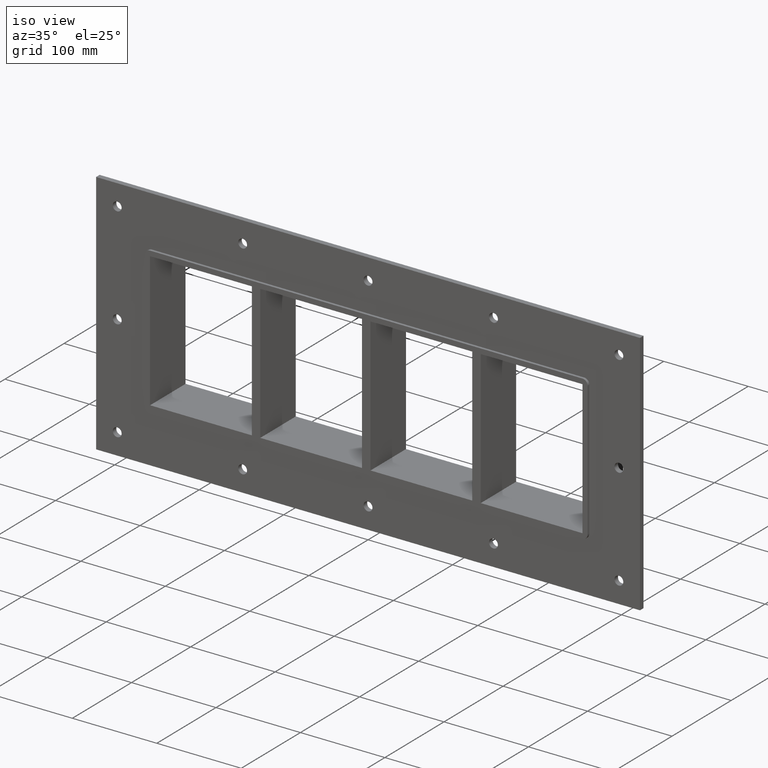
[diagram: clean part render]
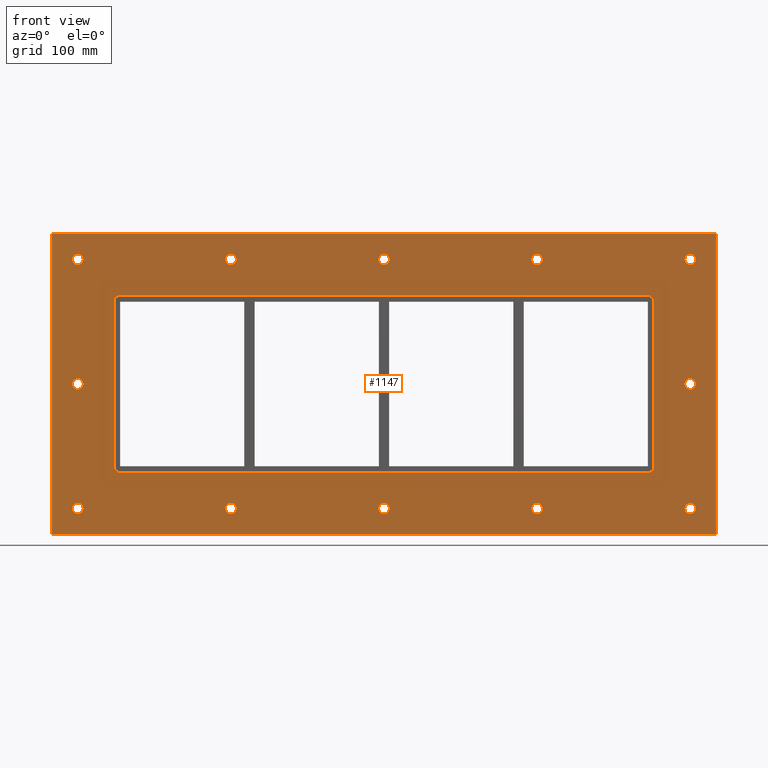
[diagram: tour spotlight — one face highlighted and labeled with its STEP entity id]
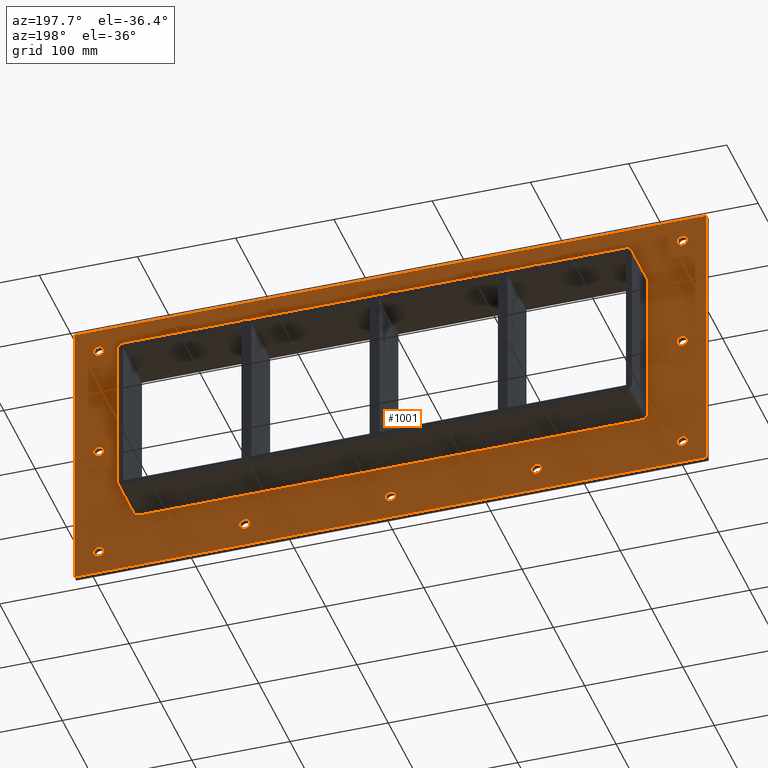
[diagram: tour spotlight — one face highlighted and labeled with its STEP entity id]
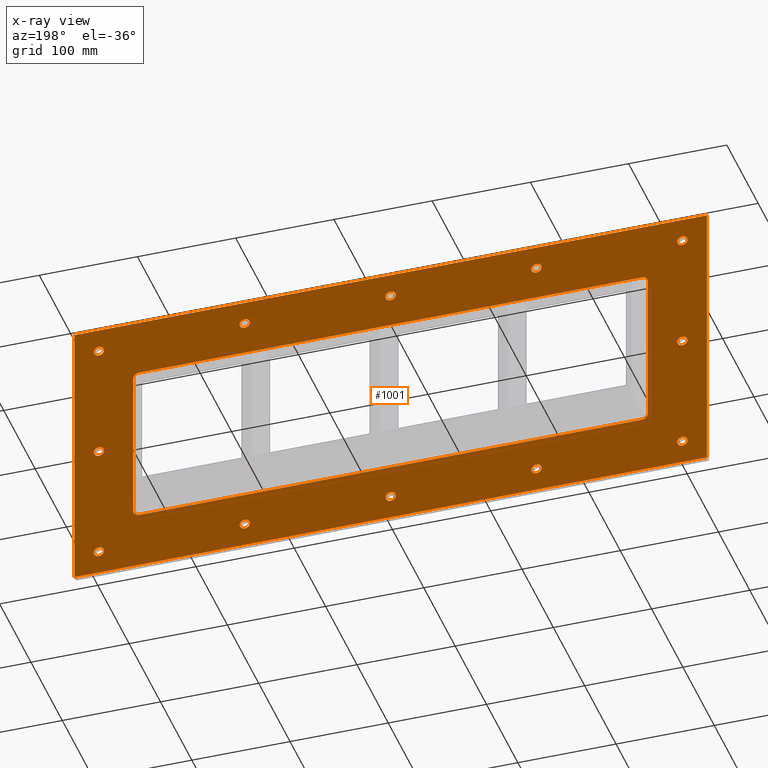
[diagram: x-ray of the same camera — body ghosted, this tour face saturated]
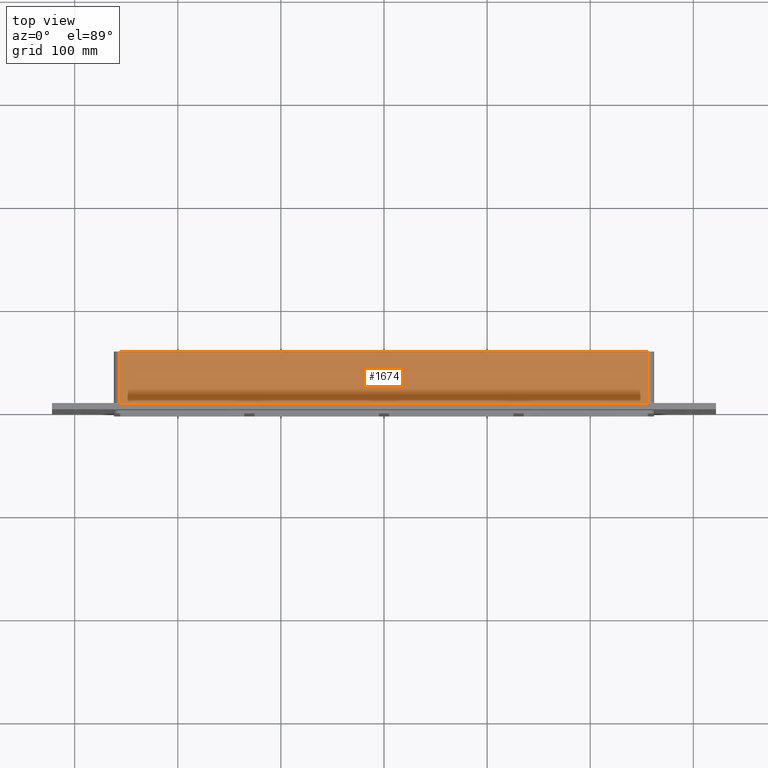
[diagram: tour spotlight — one face highlighted and labeled with its STEP entity id]
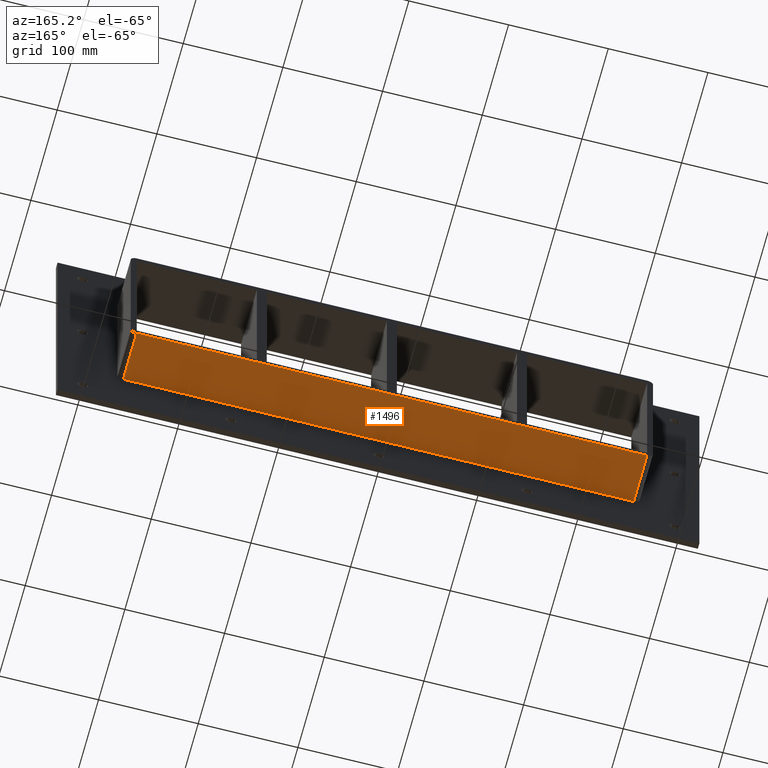
[diagram: tour spotlight — one face highlighted and labeled with its STEP entity id]
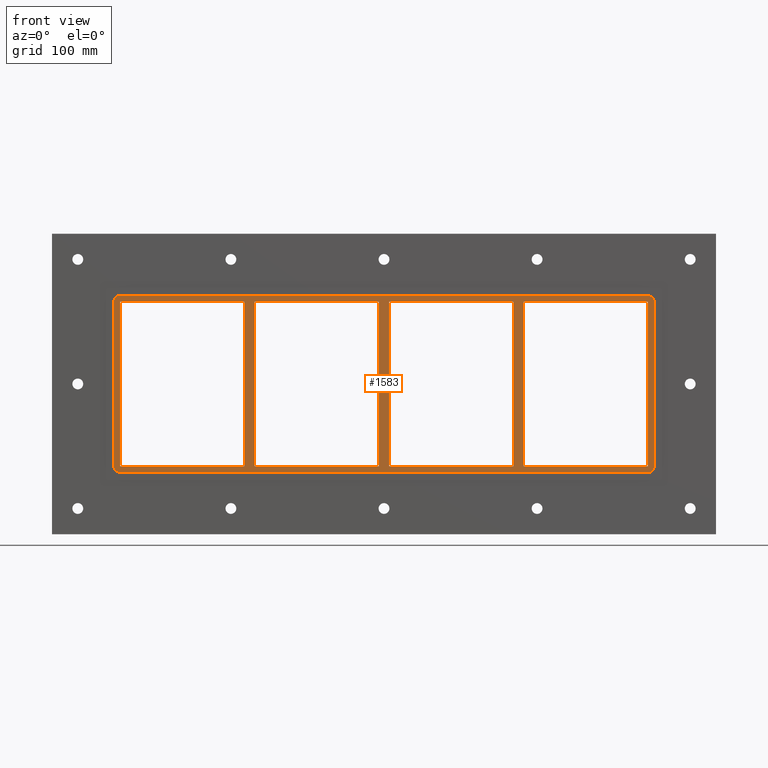
[diagram: tour spotlight — one face highlighted and labeled with its STEP entity id]
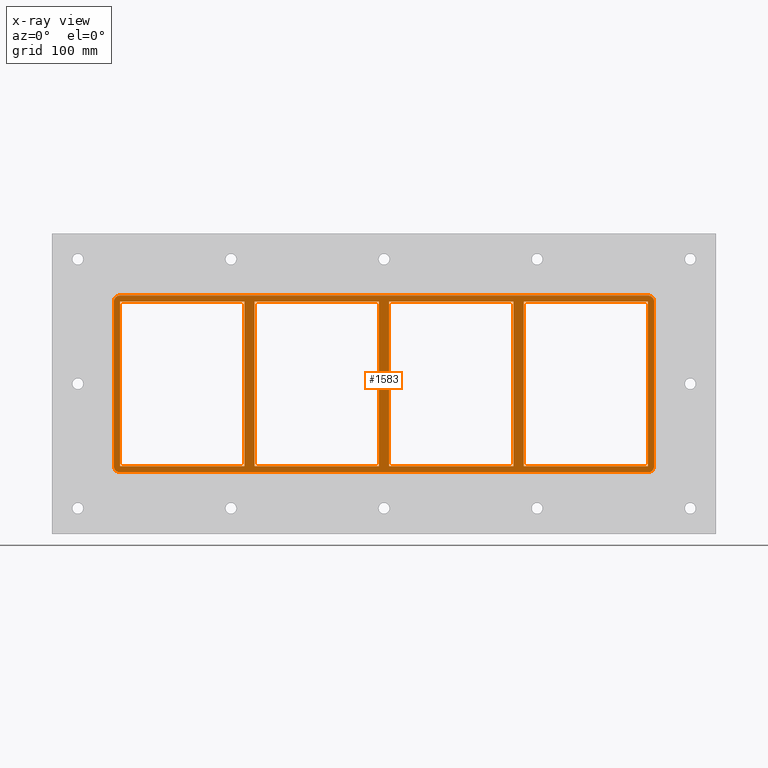
[diagram: x-ray of the same camera — body ghosted, this tour face saturated]
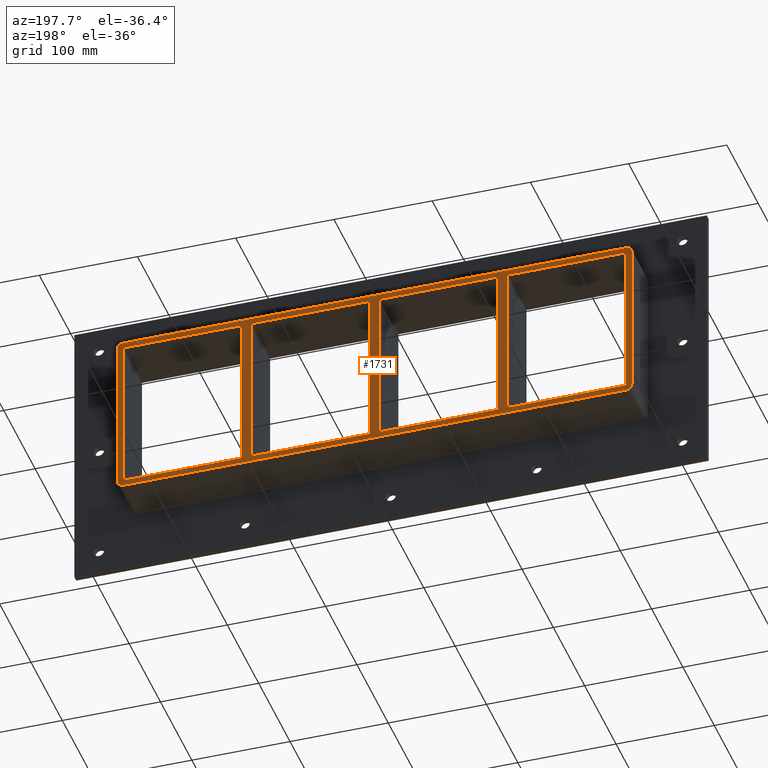
[diagram: tour spotlight — one face highlighted and labeled with its STEP entity id]
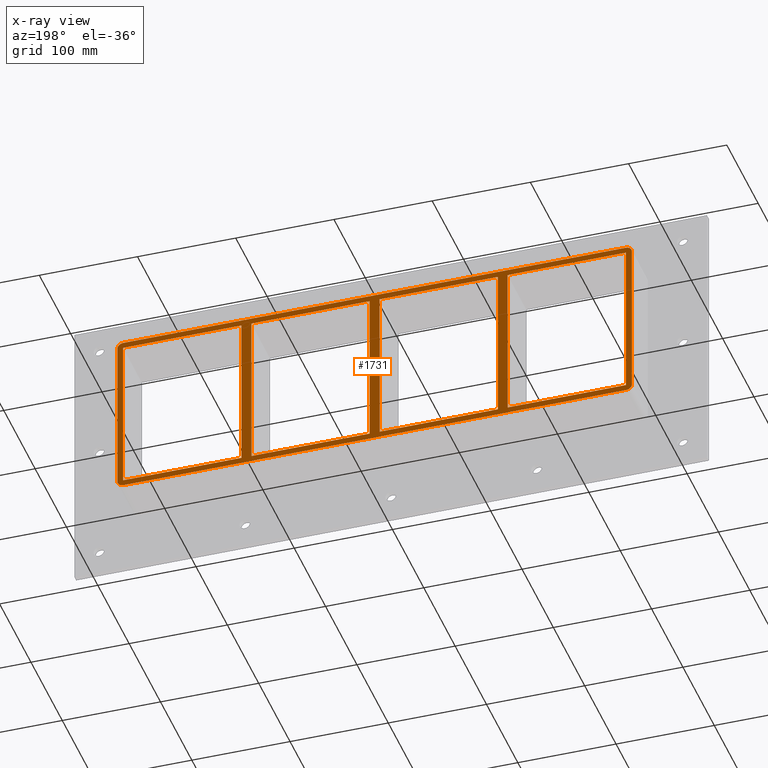
[diagram: x-ray of the same camera — body ghosted, this tour face saturated]
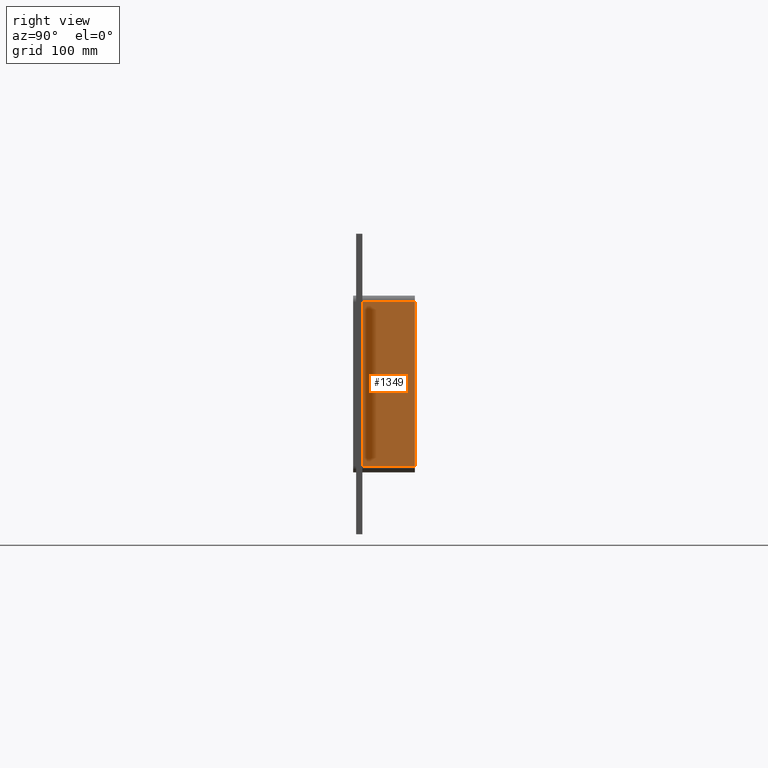
[diagram: tour spotlight — one face highlighted and labeled with its STEP entity id]
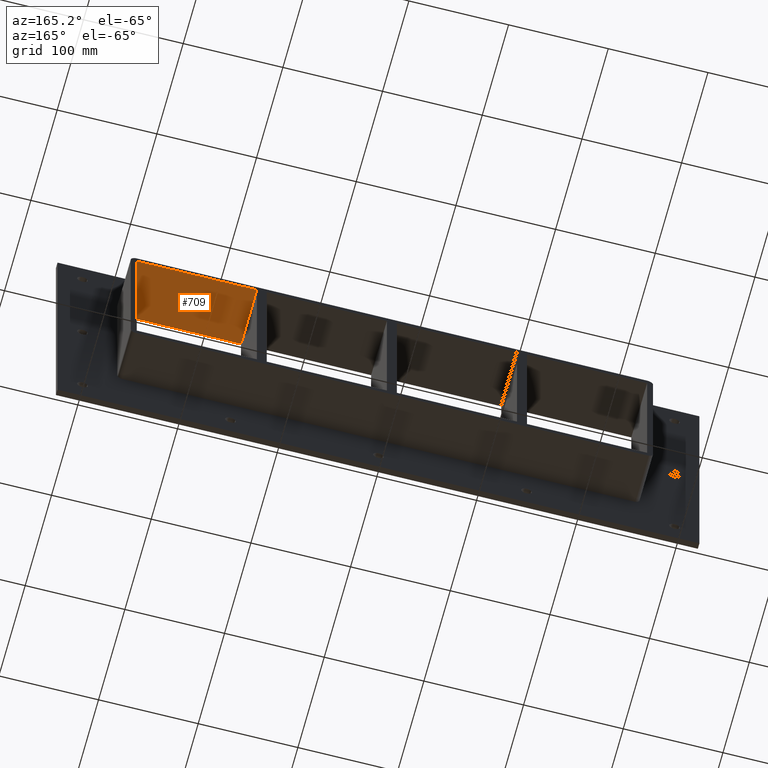
[diagram: tour spotlight — one face highlighted and labeled with its STEP entity id]
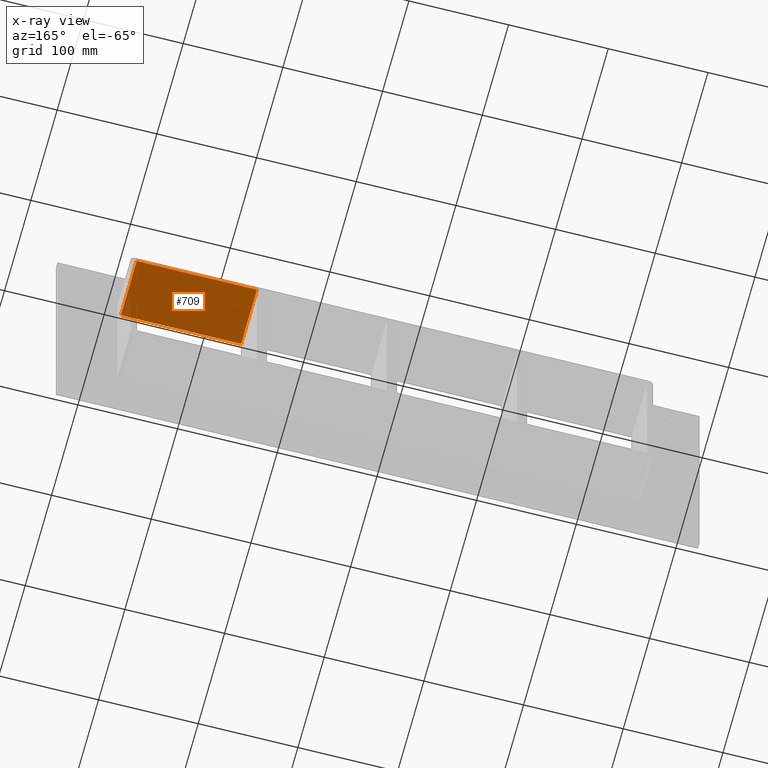
[diagram: x-ray of the same camera — body ghosted, this tour face saturated]
A machine part: a face-by-face anatomy tour. The part has 52 B-rep faces; the first image is the clean iso view, then the 8 largest visible faces are spotlighted one at a time (largest first), each with its STEP entity span.

Face 1 — front view, entity #1147. In plain terms, the highlighted planar face has unit normal (0, 1, 0).
Definition (entity closure, byte-faithful):
#84=CARTESIAN_POINT('',(-291.75000000000011,0.0,-120.74999999999997));
#85=VERTEX_POINT('',#84);
#86=CARTESIAN_POINT('',(-297.00000000000011,0.0,-120.74999999999997));
#87=DIRECTION('',(0.0,1.0,0.0));
#88=DIRECTION('',(1.0,0.0,0.0));
#89=AXIS2_PLACEMENT_3D('',#86,#87,#88);
#90=CIRCLE('',#89,5.25);
#91=EDGE_CURVE('',#85,#85,#90,.T.);
#112=CARTESIAN_POINT('',(302.24999999999994,0.0,0.050000000000008));
#113=VERTEX_POINT('',#112);
#114=CARTESIAN_POINT('',(296.99999999999994,0.0,0.050000000000008));
#115=DIRECTION('',(0.0,1.0,0.0));
#116=DIRECTION('',(1.0,0.0,0.0));
#117=AXIS2_PLACEMENT_3D('',#114,#115,#116);
#118=CIRCLE('',#117,5.25);
#119=EDGE_CURVE('',#113,#113,#118,.T.);
#140=CARTESIAN_POINT('',(-291.75000000000011,0.0,0.050000000000008));
#141=VERTEX_POINT('',#140);
#142=CARTESIAN_POINT('',(-297.00000000000011,0.0,0.050000000000008));
#143=DIRECTION('',(0.0,1.0,0.0));
#144=DIRECTION('',(1.0,0.0,0.0));
#145=AXIS2_PLACEMENT_3D('',#142,#143,#144);
#146=CIRCLE('',#145,5.25);
#147=EDGE_CURVE('',#141,#141,#146,.T.);
#168=CARTESIAN_POINT('',(-143.25000000000011,0.0,120.84999999999999));
#169=VERTEX_POINT('',#168);
#170=CARTESIAN_POINT('',(-148.50000000000009,0.0,120.84999999999999));
#171=DIRECTION('',(0.0,1.0,0.0));
#172=DIRECTION('',(1.0,0.0,0.0));
#173=AXIS2_PLACEMENT_3D('',#170,#171,#172);
#174=CIRCLE('',#173,5.25);
#175=EDGE_CURVE('',#169,#169,#174,.T.);
#196=CARTESIAN_POINT('',(-143.25000000000011,0.0,-120.75000000000001));
#197=VERTEX_POINT('',#196);
#198=CARTESIAN_POINT('',(-148.50000000000009,0.0,-120.75000000000001));
#199=DIRECTION('',(0.0,1.0,0.0));
#200=DIRECTION('',(1.0,0.0,0.0));
#201=AXIS2_PLACEMENT_3D('',#198,#199,#200);
#202=CIRCLE('',#201,5.25);
#203=EDGE_CURVE('',#197,#197,#202,.T.);
#224=CARTESIAN_POINT('',(5.249999999999915,0.0,120.84999999999999));
#225=VERTEX_POINT('',#224);
#226=CARTESIAN_POINT('',(-7.105427E-014,0.0,120.84999999999999));
#227=DIRECTION('',(0.0,1.0,0.0));
#228=DIRECTION('',(1.0,0.0,0.0));
#229=AXIS2_PLACEMENT_3D('',#226,#227,#228);
#230=CIRCLE('',#229,5.25);
#231=EDGE_CURVE('',#225,#225,#230,.T.);
#252=CARTESIAN_POINT('',(5.249999999999915,0.0,-120.75000000000001));
#253=VERTEX_POINT('',#252);
#254=CARTESIAN_POINT('',(-7.105427E-014,0.0,-120.75000000000001));
#255=DIRECTION('',(0.0,1.0,0.0));
#256=DIRECTION('',(1.0,0.0,0.0));
#257=AXIS2_PLACEMENT_3D('',#254,#255,#256);
#258=CIRCLE('',#257,5.25);
#259=EDGE_CURVE('',#253,#253,#258,.T.);
#280=CARTESIAN_POINT('',(153.74999999999994,0.0,120.84999999999999));
#281=VERTEX_POINT('',#280);
#282=CARTESIAN_POINT('',(148.49999999999994,0.0,120.84999999999999));
#283=DIRECTION('',(0.0,1.0,0.0));
#284=DIRECTION('',(1.0,0.0,0.0));
#285=AXIS2_PLACEMENT_3D('',#282,#283,#284);
#286=CIRCLE('',#285,5.25);
#287=EDGE_CURVE('',#281,#281,#286,.T.);
#308=CARTESIAN_POINT('',(153.74999999999994,0.0,-120.75000000000001));
#309=VERTEX_POINT('',#308);
#310=CARTESIAN_POINT('',(148.49999999999994,0.0,-120.75000000000001));
#311=DIRECTION('',(0.0,1.0,0.0));
#312=DIRECTION('',(1.0,0.0,0.0));
#313=AXIS2_PLACEMENT_3D('',#310,#311,#312);
#314=CIRCLE('',#313,5.25);
#315=EDGE_CURVE('',#309,#309,#314,.T.);
#336=CARTESIAN_POINT('',(302.24999999999994,0.0,-120.75000000000001));
#337=VERTEX_POINT('',#336);
#338=CARTESIAN_POINT('',(296.99999999999994,0.0,-120.75000000000001));
#339=DIRECTION('',(0.0,1.0,0.0));
#340=DIRECTION('',(1.0,0.0,0.0));
#341=AXIS2_PLACEMENT_3D('',#338,#339,#340);
#342=CIRCLE('',#341,5.25);
#343=EDGE_CURVE('',#337,#337,#342,.T.);
#364=CARTESIAN_POINT('',(-291.75000000000011,0.0,120.84999999999999));
#365=VERTEX_POINT('',#364);
#366=CARTESIAN_POINT('',(-297.00000000000011,0.0,120.84999999999999));
#367=DIRECTION('',(0.0,1.0,0.0));
#368=DIRECTION('',(1.0,0.0,0.0));
#369=AXIS2_PLACEMENT_3D('',#366,#367,#368);
#370=CIRCLE('',#369,5.25);
#371=EDGE_CURVE('',#365,#365,#370,.T.);
#392=CARTESIAN_POINT('',(302.24999999999994,0.0,120.84999999999999));
#393=VERTEX_POINT('',#392);
#394=CARTESIAN_POINT('',(296.99999999999994,0.0,120.84999999999999));
#395=DIRECTION('',(0.0,1.0,0.0));
#396=DIRECTION('',(1.0,0.0,0.0));
#397=AXIS2_PLACEMENT_3D('',#394,#395,#396);
#398=CIRCLE('',#397,5.25);
#399=EDGE_CURVE('',#393,#393,#398,.T.);
#1002=CARTESIAN_POINT('',(0.0,0.0,0.0));
#1003=DIRECTION('',(0.0,1.0,0.0));
#1004=DIRECTION('',(0.0,0.0,1.0));
#1005=AXIS2_PLACEMENT_3D('',#1002,#1003,#1004);
#1006=PLANE('',#1005);
#1007=CARTESIAN_POINT('',(-322.0,0.0,145.75));
#1008=VERTEX_POINT('',#1007);
#1009=CARTESIAN_POINT('',(322.0,0.0,145.75));
#1010=VERTEX_POINT('',#1009);
#1011=CARTESIAN_POINT('',(-322.0,0.0,145.75));
#1012=DIRECTION('',(1.0,0.0,0.0));
#1013=VECTOR('',#1012,644.0);
#1014=LINE('',#1011,#1013);
#1015=EDGE_CURVE('',#1008,#1010,#1014,.T.);
#1016=ORIENTED_EDGE('',*,*,#1015,.F.);
#1017=CARTESIAN_POINT('',(-322.0,0.0,-145.75));
#1018=VERTEX_POINT('',#1017);
#1019=CARTESIAN_POINT('',(-322.0,0.0,-145.75));
#1020=DIRECTION('',(0.0,0.0,1.0));
#1021=VECTOR('',#1020,291.5);
#1022=LINE('',#1019,#1021);
#1023=EDGE_CURVE('',#1018,#1008,#1022,.T.);
#1024=ORIENTED_EDGE('',*,*,#1023,.F.);
#1025=CARTESIAN_POINT('',(322.0,0.0,-145.75));
#1026=VERTEX_POINT('',#1025);
#1027=CARTESIAN_POINT('',(322.0,0.0,-145.75));
#1028=DIRECTION('',(-1.0,0.0,0.0));
#1029=VECTOR('',#1028,644.0);
#1030=LINE('',#1027,#1029);
#1031=EDGE_CURVE('',#1026,#1018,#1030,.T.);
#1032=ORIENTED_EDGE('',*,*,#1031,.F.);
#1033=CARTESIAN_POINT('',(322.0,0.0,145.75));
#1034=DIRECTION('',(0.0,0.0,-1.0));
#1035=VECTOR('',#1034,291.5);
#1036=LINE('',#1033,#1035);
#1037=EDGE_CURVE('',#1010,#1026,#1036,.T.);
#1038=ORIENTED_EDGE('',*,*,#1037,.F.);
#1039=EDGE_LOOP('',(#1016,#1024,#1032,#1038));
#1040=FACE_OUTER_BOUND('',#1039,.T.);
#1041=ORIENTED_EDGE('',*,*,#91,.T.);
#1042=EDGE_LOOP('',(#1041));
#1043=FACE_BOUND('',#1042,.T.);
#1044=ORIENTED_EDGE('',*,*,#119,.T.);
#1045=EDGE_LOOP('',(#1044));
#1046=FACE_BOUND('',#1045,.T.);
#1047=ORIENTED_EDGE('',*,*,#147,.T.);
#1048=EDGE_LOOP('',(#1047));
#1049=FACE_BOUND('',#1048,.T.);
#1050=ORIENTED_EDGE('',*,*,#175,.T.);
#1051=EDGE_LOOP('',(#1050));
#1052=FACE_BOUND('',#1051,.T.);
#1053=ORIENTED_EDGE('',*,*,#203,.T.);
#1054=EDGE_LOOP('',(#1053));
#1055=FACE_BOUND('',#1054,.T.);
#1056=ORIENTED_EDGE('',*,*,#231,.T.);
#1057=EDGE_LOOP('',(#1056));
#1058=FACE_BOUND('',#1057,.T.);
#1059=ORIENTED_EDGE('',*,*,#259,.T.);
#1060=EDGE_LOOP('',(#1059));
#1061=FACE_BOUND('',#1060,.T.);
#1062=ORIENTED_EDGE('',*,*,#287,.T.);
#1063=EDGE_LOOP('',(#1062));
#1064=FACE_BOUND('',#1063,.T.);
#1065=ORIENTED_EDGE('',*,*,#315,.T.);
#1066=EDGE_LOOP('',(#1065));
#1067=FACE_BOUND('',#1066,.T.);
#1068=ORIENTED_EDGE('',*,*,#343,.T.);
#1069=EDGE_LOOP('',(#1068));
#1070=FACE_BOUND('',#1069,.T.);
#1071=ORIENTED_EDGE('',*,*,#371,.T.);
#1072=EDGE_LOOP('',(#1071));
#1073=FACE_BOUND('',#1072,.T.);
#1074=ORIENTED_EDGE('',*,*,#399,.T.);
#1075=EDGE_LOOP('',(#1074));
#1076=FACE_BOUND('',#1075,.T.);
#1077=CARTESIAN_POINT('',(-262.0,0.0,-79.750000000000028));
#1078=VERTEX_POINT('',#1077);
#1079=CARTESIAN_POINT('',(-256.0,0.0,-85.750000000000028));
#1080=VERTEX_POINT('',#1079);
#1081=CARTESIAN_POINT('',(-256.0,0.0,-79.750000000000028));
#1082=DIRECTION('',(0.0,-1.0,0.0));
#1083=DIRECTION('',(-0.707106781186549,0.0,-0.707106781186546));
#1084=AXIS2_PLACEMENT_3D('',#1081,#1082,#1083);
#1085=CIRCLE('',#1084,6.000000000000001);
#1086=EDGE_CURVE('',#1078,#1080,#1085,.T.);
#1087=ORIENTED_EDGE('',*,*,#1086,.F.);
#1088=CARTESIAN_POINT('',(-262.0,0.0,79.750000000000028));
#1089=VERTEX_POINT('',#1088);
#1090=CARTESIAN_POINT('',(-262.0,0.0,79.750000000000014));
#1091=DIRECTION('',(0.0,0.0,-1.0));
#1092=VECTOR('',#1091,159.50000000000006);
#1093=LINE('',#1090,#1092);
#1094=EDGE_CURVE('',#1089,#1078,#1093,.T.);
#1095=ORIENTED_EDGE('',*,*,#1094,.F.);
#1096=CARTESIAN_POINT('',(-256.0,0.0,85.750000000000028));
#1097=VERTEX_POINT('',#1096);
#1098=CARTESIAN_POINT('',(-256.0,0.0,79.750000000000028));
#1099=DIRECTION('',(0.0,-1.0,0.0));
#1100=DIRECTION('',(-0.707106781186549,0.0,0.707106781186546));
#1101=AXIS2_PLACEMENT_3D('',#1098,#1099,#1100);
#1102=CIRCLE('',#1101,6.000000000000001);
#1103=EDGE_CURVE('',#1097,#1089,#1102,.T.);
#1104=ORIENTED_EDGE('',*,*,#1103,.F.);
#1105=CARTESIAN_POINT('',(256.0,0.0,85.750000000000028));
#1106=VERTEX_POINT('',#1105);
#1107=CARTESIAN_POINT('',(256.0,0.0,85.750000000000028));
#1108=DIRECTION('',(-1.0,0.0,0.0));
#1109=VECTOR('',#1108,512.0);
#1110=LINE('',#1107,#1109);
#1111=EDGE_CURVE('',#1106,#1097,#1110,.T.);
#1112=ORIENTED_EDGE('',*,*,#1111,.F.);
#1113=CARTESIAN_POINT('',(262.0,0.0,79.750000000000028));
#1114=VERTEX_POINT('',#1113);
#1115=CARTESIAN_POINT('',(256.0,0.0,79.750000000000028));
#1116=DIRECTION('',(0.0,-1.0,0.0));
#1117=DIRECTION('',(0.70710678118655,0.0,0.707106781186545));
#1118=AXIS2_PLACEMENT_3D('',#1115,#1116,#1117);
#1119=CIRCLE('',#1118,6.000000000000001);
#1120=EDGE_CURVE('',#1114,#1106,#1119,.T.);
#1121=ORIENTED_EDGE('',*,*,#1120,.F.);
#1122=CARTESIAN_POINT('',(262.0,0.0,-79.750000000000028));
#1123=VERTEX_POINT('',#1122);
#1124=CARTESIAN_POINT('',(262.0,0.0,-79.750000000000014));
#1125=DIRECTION('',(0.0,0.0,1.0));
#1126=VECTOR('',#1125,159.50000000000006);
#1127=LINE('',#1124,#1126);
#1128=EDGE_CURVE('',#1123,#1114,#1127,.T.);
#1129=ORIENTED_EDGE('',*,*,#1128,.F.);
#1130=CARTESIAN_POINT('',(256.0,0.0,-85.750000000000028));
#1131=VERTEX_POINT('',#1130);
#1132=CARTESIAN_POINT('',(256.0,0.0,-79.750000000000028));
#1133=DIRECTION('',(0.0,-1.0,0.0));
#1134=DIRECTION('',(0.707106781186549,0.0,-0.707106781186546));
#1135=AXIS2_PLACEMENT_3D('',#1132,#1133,#1134);
#1136=CIRCLE('',#1135,6.000000000000001);
#1137=EDGE_CURVE('',#1131,#1123,#1136,.T.);
#1138=ORIENTED_EDGE('',*,*,#1137,.F.);
#1139=CARTESIAN_POINT('',(-256.0,0.0,-85.750000000000028));
#1140=DIRECTION('',(1.0,0.0,0.0));
#1141=VECTOR('',#1140,512.0);
#1142=LINE('',#1139,#1141);
#1143=EDGE_CURVE('',#1080,#1131,#1142,.T.);
#1144=ORIENTED_EDGE('',*,*,#1143,.F.);
#1145=EDGE_LOOP('',(#1087,#1095,#1104,#1112,#1121,#1129,#1138,#1144));
#1146=FACE_BOUND('',#1145,.T.);
#1147=ADVANCED_FACE('',(#1040,#1043,#1046,#1049,#1052,#1055,#1058,#1061,#1064,#1067,#1070,#1073,#1076,#1146),#1006,.F.);

Face 2 — auxiliary view, entity #1001. An x-ray twin of the same camera follows (body ghosted, this face saturated) — the face is partly hidden behind the body. In plain terms, the highlighted planar face has unit normal (0, 1, 0).
Definition (entity closure, byte-faithful):
#73=CARTESIAN_POINT('',(-302.25000000000011,5.999999999999943,-120.74999999999997));
#74=VERTEX_POINT('',#73);
#75=CARTESIAN_POINT('',(-297.00000000000011,5.999999999999943,-120.74999999999997));
#76=DIRECTION('',(0.0,-1.0,0.0));
#77=DIRECTION('',(1.0,0.0,0.0));
#78=AXIS2_PLACEMENT_3D('',#75,#76,#77);
#79=CIRCLE('',#78,5.25);
#80=EDGE_CURVE('',#74,#74,#79,.T.);
#101=CARTESIAN_POINT('',(291.75,5.999999999999943,0.050000000000008));
#102=VERTEX_POINT('',#101);
#103=CARTESIAN_POINT('',(296.99999999999994,5.999999999999943,0.050000000000008));
#104=DIRECTION('',(0.0,-1.0,0.0));
#105=DIRECTION('',(1.0,0.0,0.0));
#106=AXIS2_PLACEMENT_3D('',#103,#104,#105);
#107=CIRCLE('',#106,5.25);
#108=EDGE_CURVE('',#102,#102,#107,.T.);
#129=CARTESIAN_POINT('',(-302.25000000000011,5.999999999999943,0.050000000000008));
#130=VERTEX_POINT('',#129);
#131=CARTESIAN_POINT('',(-297.00000000000011,5.999999999999943,0.050000000000008));
#132=DIRECTION('',(0.0,-1.0,0.0));
#133=DIRECTION('',(1.0,0.0,0.0));
#134=AXIS2_PLACEMENT_3D('',#131,#132,#133);
#135=CIRCLE('',#134,5.25);
#136=EDGE_CURVE('',#130,#130,#135,.T.);
#157=CARTESIAN_POINT('',(-153.75000000000006,5.999999999999943,120.84999999999999));
#158=VERTEX_POINT('',#157);
#159=CARTESIAN_POINT('',(-148.50000000000009,5.999999999999943,120.84999999999999));
#160=DIRECTION('',(0.0,-1.0,0.0));
#161=DIRECTION('',(1.0,0.0,0.0));
#162=AXIS2_PLACEMENT_3D('',#159,#160,#161);
#163=CIRCLE('',#162,5.25);
#164=EDGE_CURVE('',#158,#158,#163,.T.);
#185=CARTESIAN_POINT('',(-153.75000000000006,5.999999999999943,-120.75000000000001));
#186=VERTEX_POINT('',#185);
#187=CARTESIAN_POINT('',(-148.50000000000009,5.999999999999943,-120.75000000000001));
#188=DIRECTION('',(0.0,-1.0,0.0));
#189=DIRECTION('',(1.0,0.0,0.0));
#190=AXIS2_PLACEMENT_3D('',#187,#188,#189);
#191=CIRCLE('',#190,5.25);
#192=EDGE_CURVE('',#186,#186,#191,.T.);
#213=CARTESIAN_POINT('',(-5.250000000000057,5.999999999999943,120.84999999999999));
#214=VERTEX_POINT('',#213);
#215=CARTESIAN_POINT('',(-7.105427E-014,5.999999999999943,120.84999999999999));
#216=DIRECTION('',(0.0,-1.0,0.0));
#217=DIRECTION('',(1.0,0.0,0.0));
#218=AXIS2_PLACEMENT_3D('',#215,#216,#217);
#219=CIRCLE('',#218,5.25);
#220=EDGE_CURVE('',#214,#214,#219,.T.);
#241=CARTESIAN_POINT('',(-5.250000000000057,5.999999999999943,-120.75000000000001));
#242=VERTEX_POINT('',#241);
#243=CARTESIAN_POINT('',(-7.105427E-014,5.999999999999943,-120.75000000000001));
#244=DIRECTION('',(0.0,-1.0,0.0));
#245=DIRECTION('',(1.0,0.0,0.0));
#246=AXIS2_PLACEMENT_3D('',#243,#244,#245);
#247=CIRCLE('',#246,5.25);
#248=EDGE_CURVE('',#242,#242,#247,.T.);
#269=CARTESIAN_POINT('',(143.24999999999994,5.999999999999943,120.84999999999999));
#270=VERTEX_POINT('',#269);
#271=CARTESIAN_POINT('',(148.49999999999994,5.999999999999943,120.84999999999999));
#272=DIRECTION('',(0.0,-1.0,0.0));
#273=DIRECTION('',(1.0,0.0,0.0));
#274=AXIS2_PLACEMENT_3D('',#271,#272,#273);
#275=CIRCLE('',#274,5.25);
#276=EDGE_CURVE('',#270,#270,#275,.T.);
#297=CARTESIAN_POINT('',(143.24999999999994,5.999999999999943,-120.75000000000001));
#298=VERTEX_POINT('',#297);
#299=CARTESIAN_POINT('',(148.49999999999994,5.999999999999943,-120.75000000000001));
#300=DIRECTION('',(0.0,-1.0,0.0));
#301=DIRECTION('',(1.0,0.0,0.0));
#302=AXIS2_PLACEMENT_3D('',#299,#300,#301);
#303=CIRCLE('',#302,5.25);
#304=EDGE_CURVE('',#298,#298,#303,.T.);
#325=CARTESIAN_POINT('',(291.75,5.999999999999943,-120.75000000000001));
#326=VERTEX_POINT('',#325);
#327=CARTESIAN_POINT('',(296.99999999999994,5.999999999999943,-120.75000000000001));
#328=DIRECTION('',(0.0,-1.0,0.0));
#329=DIRECTION('',(1.0,0.0,0.0));
#330=AXIS2_PLACEMENT_3D('',#327,#328,#329);
#331=CIRCLE('',#330,5.25);
#332=EDGE_CURVE('',#326,#326,#331,.T.);
#353=CARTESIAN_POINT('',(-302.25000000000011,5.999999999999943,120.84999999999999));
#354=VERTEX_POINT('',#353);
#355=CARTESIAN_POINT('',(-297.00000000000011,5.999999999999943,120.84999999999999));
#356=DIRECTION('',(0.0,-1.0,0.0));
#357=DIRECTION('',(1.0,0.0,0.0));
#358=AXIS2_PLACEMENT_3D('',#355,#356,#357);
#359=CIRCLE('',#358,5.25);
#360=EDGE_CURVE('',#354,#354,#359,.T.);
#381=CARTESIAN_POINT('',(291.75,5.999999999999943,120.84999999999999));
#382=VERTEX_POINT('',#381);
#383=CARTESIAN_POINT('',(296.99999999999994,5.999999999999943,120.84999999999999));
#384=DIRECTION('',(0.0,-1.0,0.0));
#385=DIRECTION('',(1.0,0.0,0.0));
#386=AXIS2_PLACEMENT_3D('',#383,#384,#385);
#387=CIRCLE('',#386,5.25);
#388=EDGE_CURVE('',#382,#382,#387,.T.);
#856=CARTESIAN_POINT('',(0.0,6.000000000000001,0.0));
#857=DIRECTION('',(0.0,1.0,0.0));
#858=DIRECTION('',(0.0,0.0,1.0));
#859=AXIS2_PLACEMENT_3D('',#856,#857,#858);
#860=PLANE('',#859);
#861=CARTESIAN_POINT('',(-322.0,6.000000000000001,145.75));
#862=VERTEX_POINT('',#861);
#863=CARTESIAN_POINT('',(322.0,6.000000000000001,145.75));
#864=VERTEX_POINT('',#863);
#865=CARTESIAN_POINT('',(-322.0,6.000000000000001,145.75));
#866=DIRECTION('',(1.0,0.0,0.0));
#867=VECTOR('',#866,644.0);
#868=LINE('',#865,#867);
#869=EDGE_CURVE('',#862,#864,#868,.T.);
#870=ORIENTED_EDGE('',*,*,#869,.T.);
#871=CARTESIAN_POINT('',(322.0,6.000000000000001,-145.75));
#872=VERTEX_POINT('',#871);
#873=CARTESIAN_POINT('',(322.0,6.000000000000001,145.75));
#874=DIRECTION('',(0.0,0.0,-1.0));
#875=VECTOR('',#874,291.5);
#876=LINE('',#873,#875);
#877=EDGE_CURVE('',#864,#872,#876,.T.);
#878=ORIENTED_EDGE('',*,*,#877,.T.);
#879=CARTESIAN_POINT('',(-322.0,6.000000000000001,-145.75));
#880=VERTEX_POINT('',#879);
#881=CARTESIAN_POINT('',(322.0,6.000000000000001,-145.75));
#882=DIRECTION('',(-1.0,0.0,0.0));
#883=VECTOR('',#882,644.0);
#884=LINE('',#881,#883);
#885=EDGE_CURVE('',#872,#880,#884,.T.);
#886=ORIENTED_EDGE('',*,*,#885,.T.);
#887=CARTESIAN_POINT('',(-322.0,6.000000000000001,-145.75));
#888=DIRECTION('',(0.0,0.0,1.0));
#889=VECTOR('',#888,291.5);
#890=LINE('',#887,#889);
#891=EDGE_CURVE('',#880,#862,#890,.T.);
#892=ORIENTED_EDGE('',*,*,#891,.T.);
#893=EDGE_LOOP('',(#870,#878,#886,#892));
#894=FACE_OUTER_BOUND('',#893,.T.);
#895=ORIENTED_EDGE('',*,*,#80,.T.);
#896=EDGE_LOOP('',(#895));
#897=FACE_BOUND('',#896,.T.);
#898=ORIENTED_EDGE('',*,*,#108,.T.);
#899=EDGE_LOOP('',(#898));
#900=FACE_BOUND('',#899,.T.);
#901=ORIENTED_EDGE('',*,*,#136,.T.);
#902=EDGE_LOOP('',(#901));
#903=FACE_BOUND('',#902,.T.);
#904=ORIENTED_EDGE('',*,*,#164,.T.);
#905=EDGE_LOOP('',(#904));
#906=FACE_BOUND('',#905,.T.);
#907=ORIENTED_EDGE('',*,*,#192,.T.);
#908=EDGE_LOOP('',(#907));
#909=FACE_BOUND('',#908,.T.);
#910=ORIENTED_EDGE('',*,*,#220,.T.);
#911=EDGE_LOOP('',(#910));
#912=FACE_BOUND('',#911,.T.);
#913=ORIENTED_EDGE('',*,*,#248,.T.);
#914=EDGE_LOOP('',(#913));
#915=FACE_BOUND('',#914,.T.);
#916=ORIENTED_EDGE('',*,*,#276,.T.);
#917=EDGE_LOOP('',(#916));
#918=FACE_BOUND('',#917,.T.);
#919=ORIENTED_EDGE('',*,*,#304,.T.);
#920=EDGE_LOOP('',(#919));
#921=FACE_BOUND('',#920,.T.);
#922=ORIENTED_EDGE('',*,*,#332,.T.);
#923=EDGE_LOOP('',(#922));
#924=FACE_BOUND('',#923,.T.);
#925=ORIENTED_EDGE('',*,*,#360,.T.);
#926=EDGE_LOOP('',(#925));
#927=FACE_BOUND('',#926,.T.);
#928=ORIENTED_EDGE('',*,*,#388,.T.);
#929=EDGE_LOOP('',(#928));
#930=FACE_BOUND('',#929,.T.);
#931=CARTESIAN_POINT('',(-256.0,6.000000000000001,-85.750000000000028));
#932=VERTEX_POINT('',#931);
#933=CARTESIAN_POINT('',(-262.0,6.000000000000001,-79.750000000000028));
#934=VERTEX_POINT('',#933);
#935=CARTESIAN_POINT('',(-256.0,6.000000000000001,-79.750000000000028));
#936=DIRECTION('',(0.0,1.0,0.0));
#937=DIRECTION('',(-0.707106781186549,0.0,-0.707106781186546));
#938=AXIS2_PLACEMENT_3D('',#935,#936,#937);
#939=CIRCLE('',#938,6.000000000000001);
#940=EDGE_CURVE('',#932,#934,#939,.T.);
#941=ORIENTED_EDGE('',*,*,#940,.F.);
#942=CARTESIAN_POINT('',(256.0,6.000000000000001,-85.750000000000028));
#943=VERTEX_POINT('',#942);
#944=CARTESIAN_POINT('',(256.0,6.000000000000001,-85.750000000000028));
#945=DIRECTION('',(-1.0,0.0,0.0));
#946=VECTOR('',#945,512.0);
#947=LINE('',#944,#946);
#948=EDGE_CURVE('',#943,#932,#947,.T.);
#949=ORIENTED_EDGE('',*,*,#948,.F.);
#950=CARTESIAN_POINT('',(262.0,6.000000000000001,-79.750000000000028));
#951=VERTEX_POINT('',#950);
#952=CARTESIAN_POINT('',(256.0,6.000000000000001,-79.750000000000028));
#953=DIRECTION('',(0.0,1.0,0.0));
#954=DIRECTION('',(0.707106781186549,0.0,-0.707106781186546));
#955=AXIS2_PLACEMENT_3D('',#952,#953,#954);
#956=CIRCLE('',#955,6.000000000000001);
#957=EDGE_CURVE('',#951,#943,#956,.T.);
#958=ORIENTED_EDGE('',*,*,#957,.F.);
#959=CARTESIAN_POINT('',(262.0,6.000000000000001,79.750000000000028));
#960=VERTEX_POINT('',#959);
#961=CARTESIAN_POINT('',(262.0,6.000000000000001,79.750000000000028));
#962=DIRECTION('',(0.0,0.0,-1.0));
#963=VECTOR('',#962,159.50000000000006);
#964=LINE('',#961,#963);
#965=EDGE_CURVE('',#960,#951,#964,.T.);
#966=ORIENTED_EDGE('',*,*,#965,.F.);
#967=CARTESIAN_POINT('',(256.0,6.000000000000001,85.750000000000028));
#968=VERTEX_POINT('',#967);
#969=CARTESIAN_POINT('',(256.0,6.000000000000001,79.750000000000028));
#970=DIRECTION('',(0.0,1.0,0.0));
#971=DIRECTION('',(0.70710678118655,0.0,0.707106781186545));
#972=AXIS2_PLACEMENT_3D('',#969,#970,#971);
#973=CIRCLE('',#972,6.000000000000001);
#974=EDGE_CURVE('',#968,#960,#973,.T.);
#975=ORIENTED_EDGE('',*,*,#974,.F.);
#976=CARTESIAN_POINT('',(-256.0,6.000000000000001,85.750000000000028));
#977=VERTEX_POINT('',#976);
#978=CARTESIAN_POINT('',(-256.0,6.000000000000001,85.750000000000028));
#979=DIRECTION('',(1.0,0.0,0.0));
#980=VECTOR('',#979,512.0);
#981=LINE('',#978,#980);
#982=EDGE_CURVE('',#977,#968,#981,.T.);
#983=ORIENTED_EDGE('',*,*,#982,.F.);
#984=CARTESIAN_POINT('',(-262.0,6.000000000000001,79.750000000000028));
#985=VERTEX_POINT('',#984);
#986=CARTESIAN_POINT('',(-256.0,6.000000000000001,79.750000000000028));
#987=DIRECTION('',(0.0,1.0,0.0));
#988=DIRECTION('',(-0.707106781186549,0.0,0.707106781186546));
#989=AXIS2_PLACEMENT_3D('',#986,#987,#988);
#990=CIRCLE('',#989,6.000000000000001);
#991=EDGE_CURVE('',#985,#977,#990,.T.);
#992=ORIENTED_EDGE('',*,*,#991,.F.);
#993=CARTESIAN_POINT('',(-262.0,6.000000000000001,-79.750000000000028));
#994=DIRECTION('',(0.0,0.0,1.0));
#995=VECTOR('',#994,159.50000000000006);
#996=LINE('',#993,#995);
#997=EDGE_CURVE('',#934,#985,#996,.T.);
#998=ORIENTED_EDGE('',*,*,#997,.F.);
#999=EDGE_LOOP('',(#941,#949,#958,#966,#975,#983,#992,#998));
#1000=FACE_BOUND('',#999,.T.);
#1001=ADVANCED_FACE('',(#894,#897,#900,#903,#906,#909,#912,#915,#918,#921,#924,#927,#930,#1000),#860,.T.);

Face 3 — top view, entity #1674. In plain terms, the highlighted planar face has unit normal (0, 0, 1).
Definition (entity closure, byte-faithful):
#967=CARTESIAN_POINT('',(256.0,6.000000000000001,85.750000000000028));
#968=VERTEX_POINT('',#967);
#976=CARTESIAN_POINT('',(-256.0,6.000000000000001,85.750000000000028));
#977=VERTEX_POINT('',#976);
#978=CARTESIAN_POINT('',(-256.0,6.000000000000001,85.750000000000028));
#979=DIRECTION('',(1.0,0.0,0.0));
#980=VECTOR('',#979,512.0);
#981=LINE('',#978,#980);
#982=EDGE_CURVE('',#977,#968,#981,.T.);
#1284=CARTESIAN_POINT('',(256.0,57.0,85.750000000000028));
#1285=VERTEX_POINT('',#1284);
#1293=CARTESIAN_POINT('',(256.0,57.0,85.750000000000028));
#1294=DIRECTION('',(0.0,-1.0,0.0));
#1295=VECTOR('',#1294,51.0);
#1296=LINE('',#1293,#1295);
#1297=EDGE_CURVE('',#1285,#968,#1296,.T.);
#1639=CARTESIAN_POINT('',(-256.0,57.0,85.750000000000028));
#1640=VERTEX_POINT('',#1639);
#1641=CARTESIAN_POINT('',(-256.0,6.000000000000001,85.750000000000028));
#1642=DIRECTION('',(0.0,1.0,0.0));
#1643=VECTOR('',#1642,51.0);
#1644=LINE('',#1641,#1643);
#1645=EDGE_CURVE('',#977,#1640,#1644,.T.);
#1658=CARTESIAN_POINT('',(-262.0,0.0,85.750000000000028));
#1659=DIRECTION('',(0.0,0.0,1.0));
#1660=DIRECTION('',(1.0,0.0,0.0));
#1661=AXIS2_PLACEMENT_3D('',#1658,#1659,#1660);
#1662=PLANE('',#1661);
#1663=ORIENTED_EDGE('',*,*,#982,.T.);
#1664=ORIENTED_EDGE('',*,*,#1297,.F.);
#1665=CARTESIAN_POINT('',(-256.0,57.0,85.750000000000028));
#1666=DIRECTION('',(1.0,0.0,0.0));
#1667=VECTOR('',#1666,512.0);
#1668=LINE('',#1665,#1667);
#1669=EDGE_CURVE('',#1640,#1285,#1668,.T.);
#1670=ORIENTED_EDGE('',*,*,#1669,.F.);
#1671=ORIENTED_EDGE('',*,*,#1645,.F.);
#1672=EDGE_LOOP('',(#1663,#1664,#1670,#1671));
#1673=FACE_OUTER_BOUND('',#1672,.T.);
#1674=ADVANCED_FACE('',(#1673),#1662,.T.);

Face 4 — auxiliary view, entity #1496. In plain terms, the highlighted planar face has unit normal (0, 0, -1).
Definition (entity closure, byte-faithful):
#931=CARTESIAN_POINT('',(-256.0,6.000000000000001,-85.750000000000028));
#932=VERTEX_POINT('',#931);
#942=CARTESIAN_POINT('',(256.0,6.000000000000001,-85.750000000000028));
#943=VERTEX_POINT('',#942);
#944=CARTESIAN_POINT('',(256.0,6.000000000000001,-85.750000000000028));
#945=DIRECTION('',(-1.0,0.0,0.0));
#946=VECTOR('',#945,512.0);
#947=LINE('',#944,#946);
#948=EDGE_CURVE('',#943,#932,#947,.T.);
#1405=CARTESIAN_POINT('',(256.0,57.0,-85.750000000000028));
#1406=VERTEX_POINT('',#1405);
#1407=CARTESIAN_POINT('',(256.0,6.000000000000001,-85.750000000000028));
#1408=DIRECTION('',(0.0,1.0,0.0));
#1409=VECTOR('',#1408,51.0);
#1410=LINE('',#1407,#1409);
#1411=EDGE_CURVE('',#943,#1406,#1410,.T.);
#1473=CARTESIAN_POINT('',(262.0,0.0,-85.750000000000028));
#1474=DIRECTION('',(0.0,0.0,-1.0));
#1475=DIRECTION('',(-1.0,0.0,0.0));
#1476=AXIS2_PLACEMENT_3D('',#1473,#1474,#1475);
#1477=PLANE('',#1476);
#1478=ORIENTED_EDGE('',*,*,#948,.T.);
#1479=CARTESIAN_POINT('',(-256.0,57.0,-85.750000000000028));
#1480=VERTEX_POINT('',#1479);
#1481=CARTESIAN_POINT('',(-256.0,57.0,-85.750000000000028));
#1482=DIRECTION('',(0.0,-1.0,0.0));
#1483=VECTOR('',#1482,51.0);
#1484=LINE('',#1481,#1483);
#1485=EDGE_CURVE('',#1480,#932,#1484,.T.);
#1486=ORIENTED_EDGE('',*,*,#1485,.F.);
#1487=CARTESIAN_POINT('',(256.0,57.0,-85.750000000000028));
#1488=DIRECTION('',(-1.0,0.0,0.0));
#1489=VECTOR('',#1488,512.0);
#1490=LINE('',#1487,#1489);
#1491=EDGE_CURVE('',#1406,#1480,#1490,.T.);
#1492=ORIENTED_EDGE('',*,*,#1491,.F.);
#1493=ORIENTED_EDGE('',*,*,#1411,.F.);
#1494=EDGE_LOOP('',(#1478,#1486,#1492,#1493));
#1495=FACE_OUTER_BOUND('',#1494,.T.);
#1496=ADVANCED_FACE('',(#1495),#1477,.T.);

Face 5 — front view, entity #1583. An x-ray twin of the same camera follows (body ghosted, this face saturated) — the face is partly hidden behind the body. In plain terms, the highlighted planar face has unit normal (0, 1, 0).
Definition (entity closure, byte-faithful):
#409=CARTESIAN_POINT('',(125.49999999999795,-3.0,-79.750000000000014));
#410=VERTEX_POINT('',#409);
#411=CARTESIAN_POINT('',(125.49999999999791,-3.0,79.750000000000014));
#412=VERTEX_POINT('',#411);
#413=CARTESIAN_POINT('',(125.49999999999795,-3.0,-79.750000000000014));
#414=DIRECTION('',(0.0,0.0,1.0));
#415=VECTOR('',#414,159.50000000000003);
#416=LINE('',#413,#415);
#417=EDGE_CURVE('',#410,#412,#416,.T.);
#449=CARTESIAN_POINT('',(135.50000000000728,-3.0,79.750000000000014));
#450=VERTEX_POINT('',#449);
#451=CARTESIAN_POINT('',(135.50000000000728,-3.0,-79.749999999987168));
#452=VERTEX_POINT('',#451);
#453=CARTESIAN_POINT('',(135.50000000000728,-3.0,79.750000000000014));
#454=DIRECTION('',(0.0,0.0,-1.0));
#455=VECTOR('',#454,159.49999999998718);
#456=LINE('',#453,#455);
#457=EDGE_CURVE('',#450,#452,#456,.T.);
#489=CARTESIAN_POINT('',(-5.000000000002061,-3.0,-79.750000000000014));
#490=VERTEX_POINT('',#489);
#491=CARTESIAN_POINT('',(-5.000000000002096,-3.0,79.750000000000014));
#492=VERTEX_POINT('',#491);
#493=CARTESIAN_POINT('',(-5.000000000002061,-3.0,-79.750000000000014));
#494=DIRECTION('',(0.0,0.0,1.0));
#495=VECTOR('',#494,159.50000000000003);
#496=LINE('',#493,#495);
#497=EDGE_CURVE('',#490,#492,#496,.T.);
#529=CARTESIAN_POINT('',(5.000000000007283,-3.0,79.750000000000014));
#530=VERTEX_POINT('',#529);
#531=CARTESIAN_POINT('',(5.000000000007283,-3.0,-79.749999999987168));
#532=VERTEX_POINT('',#531);
#533=CARTESIAN_POINT('',(5.000000000007283,-3.0,79.750000000000014));
#534=DIRECTION('',(0.0,0.0,-1.0));
#535=VECTOR('',#534,159.49999999998718);
#536=LINE('',#533,#535);
#537=EDGE_CURVE('',#530,#532,#536,.T.);
#578=CARTESIAN_POINT('',(-125.49999999999272,-3.0,-79.749999999987168));
#579=VERTEX_POINT('',#578);
#586=CARTESIAN_POINT('',(-5.000000000002046,-3.0,-79.750000000000014));
#587=DIRECTION('',(-1.0,0.0,0.0));
#588=VECTOR('',#587,120.49999999999071);
#589=LINE('',#586,#588);
#590=EDGE_CURVE('',#490,#579,#589,.T.);
#608=CARTESIAN_POINT('',(125.49999999999795,-3.0,-79.750000000000014));
#609=DIRECTION('',(-1.0,0.0,0.0));
#610=VECTOR('',#609,120.49999999999066);
#611=LINE('',#608,#610);
#612=EDGE_CURVE('',#410,#532,#611,.T.);
#623=CARTESIAN_POINT('',(256.00000000000006,-3.0,-79.750000000000014));
#624=VERTEX_POINT('',#623);
#625=CARTESIAN_POINT('',(256.00000000000006,-3.0,-79.750000000000014));
#626=DIRECTION('',(-1.0,0.0,0.0));
#627=VECTOR('',#626,120.49999999999275);
#628=LINE('',#625,#627);
#629=EDGE_CURVE('',#624,#452,#628,.T.);
#654=CARTESIAN_POINT('',(-125.49999999999272,-3.0,79.750000000000014));
#655=VERTEX_POINT('',#654);
#656=CARTESIAN_POINT('',(-125.49999999999272,-3.0,79.750000000000014));
#657=DIRECTION('',(1.0,0.0,0.0));
#658=VECTOR('',#657,120.49999999999062);
#659=LINE('',#656,#658);
#660=EDGE_CURVE('',#655,#492,#659,.T.);
#693=CARTESIAN_POINT('',(256.00000000000006,-3.0,79.750000000000014));
#694=VERTEX_POINT('',#693);
#701=CARTESIAN_POINT('',(135.5000000000073,-3.0,79.750000000000014));
#702=DIRECTION('',(1.0,0.0,0.0));
#703=VECTOR('',#702,120.4999999999927);
#704=LINE('',#701,#703);
#705=EDGE_CURVE('',#450,#694,#704,.T.);
#716=CARTESIAN_POINT('',(5.000000000007276,-3.0,79.750000000000014));
#717=DIRECTION('',(1.0,0.0,0.0));
#718=VECTOR('',#717,120.49999999999065);
#719=LINE('',#716,#718);
#720=EDGE_CURVE('',#530,#412,#719,.T.);
#737=CARTESIAN_POINT('',(-135.50000000000207,-3.0,-79.750000000000014));
#738=VERTEX_POINT('',#737);
#739=CARTESIAN_POINT('',(-135.5000000000021,-3.0,79.750000000000014));
#740=VERTEX_POINT('',#739);
#741=CARTESIAN_POINT('',(-135.50000000000207,-3.0,-79.750000000000014));
#742=DIRECTION('',(0.0,0.0,1.0));
#743=VECTOR('',#742,159.50000000000003);
#744=LINE('',#741,#743);
#745=EDGE_CURVE('',#738,#740,#744,.T.);
#777=CARTESIAN_POINT('',(-125.49999999999272,-3.0,79.750000000000014));
#778=DIRECTION('',(0.0,0.0,-1.0));
#779=VECTOR('',#778,159.49999999998718);
#780=LINE('',#777,#779);
#781=EDGE_CURVE('',#655,#579,#780,.T.);
#808=CARTESIAN_POINT('',(-256.00000000000006,-3.0,-79.750000000000014));
#809=VERTEX_POINT('',#808);
#816=CARTESIAN_POINT('',(-135.50000000000202,-3.0,-79.750000000000014));
#817=DIRECTION('',(-1.0,0.0,0.0));
#818=VECTOR('',#817,120.49999999999798);
#819=LINE('',#816,#818);
#820=EDGE_CURVE('',#738,#809,#819,.T.);
#831=CARTESIAN_POINT('',(-256.00000000000006,-3.0,79.750000000000014));
#832=VERTEX_POINT('',#831);
#833=CARTESIAN_POINT('',(-256.00000000000006,-3.0,79.750000000000014));
#834=DIRECTION('',(1.0,0.0,0.0));
#835=VECTOR('',#834,120.49999999999795);
#836=LINE('',#833,#835);
#837=EDGE_CURVE('',#832,#740,#836,.T.);
#1229=CARTESIAN_POINT('',(-256.00000000000006,-3.0,-79.750000000000014));
#1230=DIRECTION('',(0.0,0.0,1.0));
#1231=VECTOR('',#1230,159.50000000000006);
#1232=LINE('',#1229,#1231);
#1233=EDGE_CURVE('',#809,#832,#1232,.T.);
#1244=CARTESIAN_POINT('',(256.0,-3.0,85.750000000000028));
#1245=VERTEX_POINT('',#1244);
#1252=CARTESIAN_POINT('',(262.0,-3.0,79.750000000000028));
#1253=VERTEX_POINT('',#1252);
#1254=CARTESIAN_POINT('',(256.0,-3.0,79.750000000000028));
#1255=DIRECTION('',(0.0,1.0,0.0));
#1256=DIRECTION('',(0.70710678118655,0.0,0.707106781186545));
#1257=AXIS2_PLACEMENT_3D('',#1254,#1255,#1256);
#1258=CIRCLE('',#1257,6.000000000000001);
#1259=EDGE_CURVE('',#1245,#1253,#1258,.T.);
#1309=CARTESIAN_POINT('',(262.0,-3.0,-79.750000000000014));
#1310=VERTEX_POINT('',#1309);
#1311=CARTESIAN_POINT('',(262.0,-3.0,-79.750000000000028));
#1312=DIRECTION('',(0.0,0.0,1.0));
#1313=VECTOR('',#1312,159.50000000000006);
#1314=LINE('',#1311,#1313);
#1315=EDGE_CURVE('',#1310,#1253,#1314,.T.);
#1356=CARTESIAN_POINT('',(-256.0,-3.0,85.750000000000028));
#1357=VERTEX_POINT('',#1356);
#1364=CARTESIAN_POINT('',(256.0,-3.0,85.750000000000028));
#1365=DIRECTION('',(-1.0,0.0,0.0));
#1366=VECTOR('',#1365,512.0);
#1367=LINE('',#1364,#1366);
#1368=EDGE_CURVE('',#1245,#1357,#1367,.T.);
#1381=CARTESIAN_POINT('',(256.0,-3.0,-85.750000000000028));
#1382=VERTEX_POINT('',#1381);
#1383=CARTESIAN_POINT('',(256.0,-3.0,-79.750000000000028));
#1384=DIRECTION('',(0.0,1.0,0.0));
#1385=DIRECTION('',(0.707106781186549,0.0,-0.707106781186546));
#1386=AXIS2_PLACEMENT_3D('',#1383,#1384,#1385);
#1387=CIRCLE('',#1386,6.000000000000001);
#1388=EDGE_CURVE('',#1310,#1382,#1387,.T.);
#1430=CARTESIAN_POINT('',(-262.0,-3.0,79.750000000000014));
#1431=VERTEX_POINT('',#1430);
#1438=CARTESIAN_POINT('',(-256.0,-3.0,79.750000000000028));
#1439=DIRECTION('',(0.0,1.0,0.0));
#1440=DIRECTION('',(-0.707106781186549,0.0,0.707106781186546));
#1441=AXIS2_PLACEMENT_3D('',#1438,#1439,#1440);
#1442=CIRCLE('',#1441,6.000000000000001);
#1443=EDGE_CURVE('',#1431,#1357,#1442,.T.);
#1456=CARTESIAN_POINT('',(-256.0,-3.0,-85.750000000000028));
#1457=VERTEX_POINT('',#1456);
#1458=CARTESIAN_POINT('',(-256.0,-3.0,-85.750000000000028));
#1459=DIRECTION('',(1.0,0.0,0.0));
#1460=VECTOR('',#1459,512.0);
#1461=LINE('',#1458,#1460);
#1462=EDGE_CURVE('',#1457,#1382,#1461,.T.);
#1503=CARTESIAN_POINT('',(-262.0,-3.0,-79.750000000000028));
#1504=VERTEX_POINT('',#1503);
#1511=CARTESIAN_POINT('',(-262.0,-3.0,79.750000000000028));
#1512=DIRECTION('',(0.0,0.0,-1.0));
#1513=VECTOR('',#1512,159.50000000000006);
#1514=LINE('',#1511,#1513);
#1515=EDGE_CURVE('',#1431,#1504,#1514,.T.);
#1528=CARTESIAN_POINT('',(-256.0,-3.0,-79.750000000000028));
#1529=DIRECTION('',(0.0,1.0,0.0));
#1530=DIRECTION('',(-0.707106781186549,0.0,-0.707106781186546));
#1531=AXIS2_PLACEMENT_3D('',#1528,#1529,#1530);
#1532=CIRCLE('',#1531,6.000000000000001);
#1533=EDGE_CURVE('',#1457,#1504,#1532,.T.);
#1539=CARTESIAN_POINT('',(0.0,-3.0,0.0));
#1540=DIRECTION('',(0.0,1.0,0.0));
#1541=DIRECTION('',(0.0,0.0,1.0));
#1542=AXIS2_PLACEMENT_3D('',#1539,#1540,#1541);
#1543=PLANE('',#1542);
#1544=ORIENTED_EDGE('',*,*,#1388,.F.);
#1545=ORIENTED_EDGE('',*,*,#1315,.T.);
#1546=ORIENTED_EDGE('',*,*,#1259,.F.);
#1547=ORIENTED_EDGE('',*,*,#1368,.T.);
#1548=ORIENTED_EDGE('',*,*,#1443,.F.);
#1549=ORIENTED_EDGE('',*,*,#1515,.T.);
#1550=ORIENTED_EDGE('',*,*,#1533,.F.);
#1551=ORIENTED_EDGE('',*,*,#1462,.T.);
#1552=EDGE_LOOP('',(#1544,#1545,#1546,#1547,#1548,#1549,#1550,#1551));
#1553=FACE_OUTER_BOUND('',#1552,.T.);
#1554=ORIENTED_EDGE('',*,*,#612,.T.);
#1555=ORIENTED_EDGE('',*,*,#537,.F.);
#1556=ORIENTED_EDGE('',*,*,#720,.T.);
#1557=ORIENTED_EDGE('',*,*,#417,.F.);
#1558=EDGE_LOOP('',(#1554,#1555,#1556,#1557));
#1559=FACE_BOUND('',#1558,.T.);
#1560=ORIENTED_EDGE('',*,*,#590,.T.);
#1561=ORIENTED_EDGE('',*,*,#781,.F.);
#1562=ORIENTED_EDGE('',*,*,#660,.T.);
#1563=ORIENTED_EDGE('',*,*,#497,.F.);
#1564=EDGE_LOOP('',(#1560,#1561,#1562,#1563));
#1565=FACE_BOUND('',#1564,.T.);
#1566=ORIENTED_EDGE('',*,*,#820,.T.);
#1567=ORIENTED_EDGE('',*,*,#1233,.T.);
#1568=ORIENTED_EDGE('',*,*,#837,.T.);
#1569=ORIENTED_EDGE('',*,*,#745,.F.);
#1570=EDGE_LOOP('',(#1566,#1567,#1568,#1569));
#1571=FACE_BOUND('',#1570,.T.);
#1572=ORIENTED_EDGE('',*,*,#457,.F.);
#1573=ORIENTED_EDGE('',*,*,#705,.T.);
#1574=CARTESIAN_POINT('',(256.00000000000006,-3.0,79.750000000000014));
#1575=DIRECTION('',(0.0,0.0,-1.0));
#1576=VECTOR('',#1575,159.50000000000006);
#1577=LINE('',#1574,#1576);
#1578=EDGE_CURVE('',#694,#624,#1577,.T.);
#1579=ORIENTED_EDGE('',*,*,#1578,.T.);
#1580=ORIENTED_EDGE('',*,*,#629,.T.);
#1581=EDGE_LOOP('',(#1572,#1573,#1579,#1580));
#1582=FACE_BOUND('',#1581,.T.);
#1583=ADVANCED_FACE('',(#1553,#1559,#1565,#1571,#1582),#1543,.F.);

Face 6 — auxiliary view, entity #1731. An x-ray twin of the same camera follows (body ghosted, this face saturated) — the face is partly hidden behind the body. In plain terms, the highlighted planar face has unit normal (0, 1, 0).
Definition (entity closure, byte-faithful):
#419=CARTESIAN_POINT('',(125.49999999999791,57.0,79.750000000000014));
#420=VERTEX_POINT('',#419);
#427=CARTESIAN_POINT('',(125.49999999999795,57.0,-79.750000000000014));
#428=VERTEX_POINT('',#427);
#429=CARTESIAN_POINT('',(125.49999999999795,57.0,-79.750000000000014));
#430=DIRECTION('',(0.0,0.0,1.0));
#431=VECTOR('',#430,159.50000000000003);
#432=LINE('',#429,#431);
#433=EDGE_CURVE('',#428,#420,#432,.T.);
#459=CARTESIAN_POINT('',(135.50000000000728,57.0,-79.749999999987168));
#460=VERTEX_POINT('',#459);
#467=CARTESIAN_POINT('',(135.50000000000728,57.0,79.750000000000014));
#468=VERTEX_POINT('',#467);
#469=CARTESIAN_POINT('',(135.50000000000728,57.0,79.750000000000014));
#470=DIRECTION('',(0.0,0.0,-1.0));
#471=VECTOR('',#470,159.49999999998718);
#472=LINE('',#469,#471);
#473=EDGE_CURVE('',#468,#460,#472,.T.);
#499=CARTESIAN_POINT('',(-5.000000000002096,57.0,79.750000000000014));
#500=VERTEX_POINT('',#499);
#507=CARTESIAN_POINT('',(-5.000000000002061,57.0,-79.750000000000014));
#508=VERTEX_POINT('',#507);
#509=CARTESIAN_POINT('',(-5.000000000002061,57.0,-79.750000000000014));
#510=DIRECTION('',(0.0,0.0,1.0));
#511=VECTOR('',#510,159.50000000000003);
#512=LINE('',#509,#511);
#513=EDGE_CURVE('',#508,#500,#512,.T.);
#539=CARTESIAN_POINT('',(5.000000000007283,57.0,-79.749999999987168));
#540=VERTEX_POINT('',#539);
#547=CARTESIAN_POINT('',(5.000000000007283,57.0,79.750000000000014));
#548=VERTEX_POINT('',#547);
#549=CARTESIAN_POINT('',(5.000000000007283,57.0,79.750000000000014));
#550=DIRECTION('',(0.0,0.0,-1.0));
#551=VECTOR('',#550,159.49999999998718);
#552=LINE('',#549,#551);
#553=EDGE_CURVE('',#548,#540,#552,.T.);
#570=CARTESIAN_POINT('',(-125.49999999999272,57.0,-79.749999999987168));
#571=VERTEX_POINT('',#570);
#572=CARTESIAN_POINT('',(-125.49999999999275,57.0,-79.750000000000014));
#573=DIRECTION('',(1.0,0.0,0.0));
#574=VECTOR('',#573,120.49999999999071);
#575=LINE('',#572,#574);
#576=EDGE_CURVE('',#571,#508,#575,.T.);
#601=CARTESIAN_POINT('',(5.00000000000729,57.0,-79.750000000000014));
#602=DIRECTION('',(1.0,0.0,0.0));
#603=VECTOR('',#602,120.49999999999066);
#604=LINE('',#601,#603);
#605=EDGE_CURVE('',#540,#428,#604,.T.);
#631=CARTESIAN_POINT('',(256.00000000000006,57.0,-79.750000000000014));
#632=VERTEX_POINT('',#631);
#639=CARTESIAN_POINT('',(135.5000000000073,57.0,-79.750000000000014));
#640=DIRECTION('',(1.0,0.0,0.0));
#641=VECTOR('',#640,120.49999999999275);
#642=LINE('',#639,#641);
#643=EDGE_CURVE('',#460,#632,#642,.T.);
#662=CARTESIAN_POINT('',(-125.49999999999272,57.0,79.750000000000014));
#663=VERTEX_POINT('',#662);
#670=CARTESIAN_POINT('',(-5.000000000002103,57.0,79.750000000000014));
#671=DIRECTION('',(-1.0,0.0,0.0));
#672=VECTOR('',#671,120.49999999999062);
#673=LINE('',#670,#672);
#674=EDGE_CURVE('',#500,#663,#673,.T.);
#685=CARTESIAN_POINT('',(256.00000000000006,57.0,79.750000000000014));
#686=VERTEX_POINT('',#685);
#687=CARTESIAN_POINT('',(256.0,57.0,79.750000000000014));
#688=DIRECTION('',(-1.0,0.0,0.0));
#689=VECTOR('',#688,120.4999999999927);
#690=LINE('',#687,#689);
#691=EDGE_CURVE('',#686,#468,#690,.T.);
#723=CARTESIAN_POINT('',(125.49999999999793,57.0,79.750000000000014));
#724=DIRECTION('',(-1.0,0.0,0.0));
#725=VECTOR('',#724,120.49999999999065);
#726=LINE('',#723,#725);
#727=EDGE_CURVE('',#420,#548,#726,.T.);
#747=CARTESIAN_POINT('',(-135.5000000000021,57.0,79.750000000000014));
#748=VERTEX_POINT('',#747);
#755=CARTESIAN_POINT('',(-135.50000000000207,57.0,-79.750000000000014));
#756=VERTEX_POINT('',#755);
#757=CARTESIAN_POINT('',(-135.50000000000207,57.0,-79.750000000000014));
#758=DIRECTION('',(0.0,0.0,1.0));
#759=VECTOR('',#758,159.50000000000003);
#760=LINE('',#757,#759);
#761=EDGE_CURVE('',#756,#748,#760,.T.);
#784=CARTESIAN_POINT('',(-125.49999999999272,57.0,79.750000000000014));
#785=DIRECTION('',(0.0,0.0,-1.0));
#786=VECTOR('',#785,159.49999999998718);
#787=LINE('',#784,#786);
#788=EDGE_CURVE('',#663,#571,#787,.T.);
#800=CARTESIAN_POINT('',(-256.00000000000006,57.0,-79.750000000000014));
#801=VERTEX_POINT('',#800);
#802=CARTESIAN_POINT('',(-256.0,57.0,-79.750000000000014));
#803=DIRECTION('',(1.0,0.0,0.0));
#804=VECTOR('',#803,120.49999999999798);
#805=LINE('',#802,#804);
#806=EDGE_CURVE('',#801,#756,#805,.T.);
#839=CARTESIAN_POINT('',(-256.00000000000006,57.0,79.750000000000014));
#840=VERTEX_POINT('',#839);
#847=CARTESIAN_POINT('',(-135.5000000000021,57.0,79.750000000000014));
#848=DIRECTION('',(-1.0,0.0,0.0));
#849=VECTOR('',#848,120.49999999999795);
#850=LINE('',#847,#849);
#851=EDGE_CURVE('',#748,#840,#850,.T.);
#1222=CARTESIAN_POINT('',(-256.00000000000006,57.0,79.750000000000028));
#1223=DIRECTION('',(0.0,0.0,-1.0));
#1224=VECTOR('',#1223,159.50000000000006);
#1225=LINE('',#1222,#1224);
#1226=EDGE_CURVE('',#840,#801,#1225,.T.);
#1276=CARTESIAN_POINT('',(262.0,57.0,79.750000000000028));
#1277=VERTEX_POINT('',#1276);
#1284=CARTESIAN_POINT('',(256.0,57.0,85.750000000000028));
#1285=VERTEX_POINT('',#1284);
#1286=CARTESIAN_POINT('',(256.0,57.0,79.750000000000028));
#1287=DIRECTION('',(0.0,-1.0,0.0));
#1288=DIRECTION('',(0.70710678118655,0.0,0.707106781186545));
#1289=AXIS2_PLACEMENT_3D('',#1286,#1287,#1288);
#1290=CIRCLE('',#1289,6.000000000000001);
#1291=EDGE_CURVE('',#1277,#1285,#1290,.T.);
#1332=CARTESIAN_POINT('',(262.0,57.0,-79.750000000000014));
#1333=VERTEX_POINT('',#1332);
#1340=CARTESIAN_POINT('',(262.0,57.0,79.750000000000028));
#1341=DIRECTION('',(0.0,0.0,-1.0));
#1342=VECTOR('',#1341,159.50000000000006);
#1343=LINE('',#1340,#1342);
#1344=EDGE_CURVE('',#1277,#1333,#1343,.T.);
#1405=CARTESIAN_POINT('',(256.0,57.0,-85.750000000000028));
#1406=VERTEX_POINT('',#1405);
#1413=CARTESIAN_POINT('',(256.0,57.0,-79.750000000000028));
#1414=DIRECTION('',(0.0,-1.0,0.0));
#1415=DIRECTION('',(0.707106781186549,0.0,-0.707106781186546));
#1416=AXIS2_PLACEMENT_3D('',#1413,#1414,#1415);
#1417=CIRCLE('',#1416,6.000000000000001);
#1418=EDGE_CURVE('',#1406,#1333,#1417,.T.);
#1479=CARTESIAN_POINT('',(-256.0,57.0,-85.750000000000028));
#1480=VERTEX_POINT('',#1479);
#1487=CARTESIAN_POINT('',(256.0,57.0,-85.750000000000028));
#1488=DIRECTION('',(-1.0,0.0,0.0));
#1489=VECTOR('',#1488,512.0);
#1490=LINE('',#1487,#1489);
#1491=EDGE_CURVE('',#1406,#1480,#1490,.T.);
#1590=CARTESIAN_POINT('',(-262.0,57.0,-79.750000000000028));
#1591=VERTEX_POINT('',#1590);
#1598=CARTESIAN_POINT('',(-256.0,57.0,-79.750000000000028));
#1599=DIRECTION('',(0.0,-1.0,0.0));
#1600=DIRECTION('',(-0.707106781186549,0.0,-0.707106781186546));
#1601=AXIS2_PLACEMENT_3D('',#1598,#1599,#1600);
#1602=CIRCLE('',#1601,6.000000000000001);
#1603=EDGE_CURVE('',#1591,#1480,#1602,.T.);
#1615=CARTESIAN_POINT('',(-262.0,57.0,79.750000000000014));
#1616=VERTEX_POINT('',#1615);
#1623=CARTESIAN_POINT('',(-262.0,57.0,-79.750000000000028));
#1624=DIRECTION('',(0.0,0.0,1.0));
#1625=VECTOR('',#1624,159.50000000000006);
#1626=LINE('',#1623,#1625);
#1627=EDGE_CURVE('',#1591,#1616,#1626,.T.);
#1639=CARTESIAN_POINT('',(-256.0,57.0,85.750000000000028));
#1640=VERTEX_POINT('',#1639);
#1647=CARTESIAN_POINT('',(-256.0,57.0,79.750000000000028));
#1648=DIRECTION('',(0.0,-1.0,0.0));
#1649=DIRECTION('',(-0.707106781186549,0.0,0.707106781186546));
#1650=AXIS2_PLACEMENT_3D('',#1647,#1648,#1649);
#1651=CIRCLE('',#1650,6.000000000000001);
#1652=EDGE_CURVE('',#1640,#1616,#1651,.T.);
#1665=CARTESIAN_POINT('',(-256.0,57.0,85.750000000000028));
#1666=DIRECTION('',(1.0,0.0,0.0));
#1667=VECTOR('',#1666,512.0);
#1668=LINE('',#1665,#1667);
#1669=EDGE_CURVE('',#1640,#1285,#1668,.T.);
#1683=CARTESIAN_POINT('',(256.00000000000006,57.0,-79.750000000000028));
#1684=DIRECTION('',(0.0,0.0,1.0));
#1685=VECTOR('',#1684,159.50000000000006);
#1686=LINE('',#1683,#1685);
#1687=EDGE_CURVE('',#632,#686,#1686,.T.);
#1692=CARTESIAN_POINT('',(0.0,57.0,0.0));
#1693=DIRECTION('',(0.0,1.0,0.0));
#1694=DIRECTION('',(0.0,0.0,1.0));
#1695=AXIS2_PLACEMENT_3D('',#1692,#1693,#1694);
#1696=PLANE('',#1695);
#1697=ORIENTED_EDGE('',*,*,#1418,.F.);
#1698=ORIENTED_EDGE('',*,*,#1491,.T.);
#1699=ORIENTED_EDGE('',*,*,#1603,.F.);
#1700=ORIENTED_EDGE('',*,*,#1627,.T.);
#1701=ORIENTED_EDGE('',*,*,#1652,.F.);
#1702=ORIENTED_EDGE('',*,*,#1669,.T.);
#1703=ORIENTED_EDGE('',*,*,#1291,.F.);
#1704=ORIENTED_EDGE('',*,*,#1344,.T.);
#1705=EDGE_LOOP('',(#1697,#1698,#1699,#1700,#1701,#1702,#1703,#1704));
#1706=FACE_OUTER_BOUND('',#1705,.T.);
#1707=ORIENTED_EDGE('',*,*,#643,.T.);
#1708=ORIENTED_EDGE('',*,*,#1687,.T.);
#1709=ORIENTED_EDGE('',*,*,#691,.T.);
#1710=ORIENTED_EDGE('',*,*,#473,.T.);
#1711=EDGE_LOOP('',(#1707,#1708,#1709,#1710));
#1712=FACE_BOUND('',#1711,.T.);
#1713=ORIENTED_EDGE('',*,*,#433,.T.);
#1714=ORIENTED_EDGE('',*,*,#727,.T.);
#1715=ORIENTED_EDGE('',*,*,#553,.T.);
#1716=ORIENTED_EDGE('',*,*,#605,.T.);
#1717=EDGE_LOOP('',(#1713,#1714,#1715,#1716));
#1718=FACE_BOUND('',#1717,.T.);
#1719=ORIENTED_EDGE('',*,*,#513,.T.);
#1720=ORIENTED_EDGE('',*,*,#674,.T.);
#1721=ORIENTED_EDGE('',*,*,#788,.T.);
#1722=ORIENTED_EDGE('',*,*,#576,.T.);
#1723=EDGE_LOOP('',(#1719,#1720,#1721,#1722));
#1724=FACE_BOUND('',#1723,.T.);
#1725=ORIENTED_EDGE('',*,*,#761,.T.);
#1726=ORIENTED_EDGE('',*,*,#851,.T.);
#1727=ORIENTED_EDGE('',*,*,#1226,.T.);
#1728=ORIENTED_EDGE('',*,*,#806,.T.);
#1729=EDGE_LOOP('',(#1725,#1726,#1727,#1728));
#1730=FACE_BOUND('',#1729,.T.);
#1731=ADVANCED_FACE('',(#1706,#1712,#1718,#1724,#1730),#1696,.T.);

Face 7 — right view, entity #1349. In plain terms, the highlighted planar face has unit normal (1, 0, 0).
Definition (entity closure, byte-faithful):
#950=CARTESIAN_POINT('',(262.0,6.000000000000001,-79.750000000000028));
#951=VERTEX_POINT('',#950);
#959=CARTESIAN_POINT('',(262.0,6.000000000000001,79.750000000000028));
#960=VERTEX_POINT('',#959);
#961=CARTESIAN_POINT('',(262.0,6.000000000000001,79.750000000000028));
#962=DIRECTION('',(0.0,0.0,-1.0));
#963=VECTOR('',#962,159.50000000000006);
#964=LINE('',#961,#963);
#965=EDGE_CURVE('',#960,#951,#964,.T.);
#1276=CARTESIAN_POINT('',(262.0,57.0,79.750000000000028));
#1277=VERTEX_POINT('',#1276);
#1278=CARTESIAN_POINT('',(262.0,6.000000000000001,79.750000000000028));
#1279=DIRECTION('',(0.0,1.0,0.0));
#1280=VECTOR('',#1279,51.0);
#1281=LINE('',#1278,#1280);
#1282=EDGE_CURVE('',#960,#1277,#1281,.T.);
#1326=CARTESIAN_POINT('',(262.0,0.0,85.750000000000028));
#1327=DIRECTION('',(1.0,0.0,0.0));
#1328=DIRECTION('',(0.0,0.0,-1.0));
#1329=AXIS2_PLACEMENT_3D('',#1326,#1327,#1328);
#1330=PLANE('',#1329);
#1331=ORIENTED_EDGE('',*,*,#965,.T.);
#1332=CARTESIAN_POINT('',(262.0,57.0,-79.750000000000014));
#1333=VERTEX_POINT('',#1332);
#1334=CARTESIAN_POINT('',(262.0,57.0,-79.750000000000028));
#1335=DIRECTION('',(0.0,-1.0,0.0));
#1336=VECTOR('',#1335,51.0);
#1337=LINE('',#1334,#1336);
#1338=EDGE_CURVE('',#1333,#951,#1337,.T.);
#1339=ORIENTED_EDGE('',*,*,#1338,.F.);
#1340=CARTESIAN_POINT('',(262.0,57.0,79.750000000000028));
#1341=DIRECTION('',(0.0,0.0,-1.0));
#1342=VECTOR('',#1341,159.50000000000006);
#1343=LINE('',#1340,#1342);
#1344=EDGE_CURVE('',#1277,#1333,#1343,.T.);
#1345=ORIENTED_EDGE('',*,*,#1344,.F.);
#1346=ORIENTED_EDGE('',*,*,#1282,.F.);
#1347=EDGE_LOOP('',(#1331,#1339,#1345,#1346));
#1348=FACE_OUTER_BOUND('',#1347,.T.);
#1349=ADVANCED_FACE('',(#1348),#1330,.T.);

Face 8 — auxiliary view, entity #709. An x-ray twin of the same camera follows (body ghosted, this face saturated) — the face is partly hidden behind the body. In plain terms, the highlighted planar face has unit normal (0, 0, 1).
Definition (entity closure, byte-faithful):
#449=CARTESIAN_POINT('',(135.50000000000728,-3.0,79.750000000000014));
#450=VERTEX_POINT('',#449);
#467=CARTESIAN_POINT('',(135.50000000000728,57.0,79.750000000000014));
#468=VERTEX_POINT('',#467);
#475=CARTESIAN_POINT('',(135.50000000000728,-3.0,79.750000000000014));
#476=DIRECTION('',(0.0,1.0,0.0));
#477=VECTOR('',#476,60.000000000000007);
#478=LINE('',#475,#477);
#479=EDGE_CURVE('',#450,#468,#478,.T.);
#679=CARTESIAN_POINT('',(-256.00000000000006,0.0,79.750000000000014));
#680=DIRECTION('',(0.0,0.0,1.0));
#681=DIRECTION('',(1.0,0.0,0.0));
#682=AXIS2_PLACEMENT_3D('',#679,#680,#681);
#683=PLANE('',#682);
#684=ORIENTED_EDGE('',*,*,#479,.T.);
#685=CARTESIAN_POINT('',(256.00000000000006,57.0,79.750000000000014));
#686=VERTEX_POINT('',#685);
#687=CARTESIAN_POINT('',(256.0,57.0,79.750000000000014));
#688=DIRECTION('',(-1.0,0.0,0.0));
#689=VECTOR('',#688,120.4999999999927);
#690=LINE('',#687,#689);
#691=EDGE_CURVE('',#686,#468,#690,.T.);
#692=ORIENTED_EDGE('',*,*,#691,.F.);
#693=CARTESIAN_POINT('',(256.00000000000006,-3.0,79.750000000000014));
#694=VERTEX_POINT('',#693);
#695=CARTESIAN_POINT('',(256.00000000000006,-3.0,79.750000000000014));
#696=DIRECTION('',(0.0,1.0,0.0));
#697=VECTOR('',#696,60.0);
#698=LINE('',#695,#697);
#699=EDGE_CURVE('',#694,#686,#698,.T.);
#700=ORIENTED_EDGE('',*,*,#699,.F.);
#701=CARTESIAN_POINT('',(135.5000000000073,-3.0,79.750000000000014));
#702=DIRECTION('',(1.0,0.0,0.0));
#703=VECTOR('',#702,120.4999999999927);
#704=LINE('',#701,#703);
#705=EDGE_CURVE('',#450,#694,#704,.T.);
#706=ORIENTED_EDGE('',*,*,#705,.F.);
#707=EDGE_LOOP('',(#684,#692,#700,#706));
#708=FACE_OUTER_BOUND('',#707,.T.);
#709=ADVANCED_FACE('',(#708),#683,.F.);